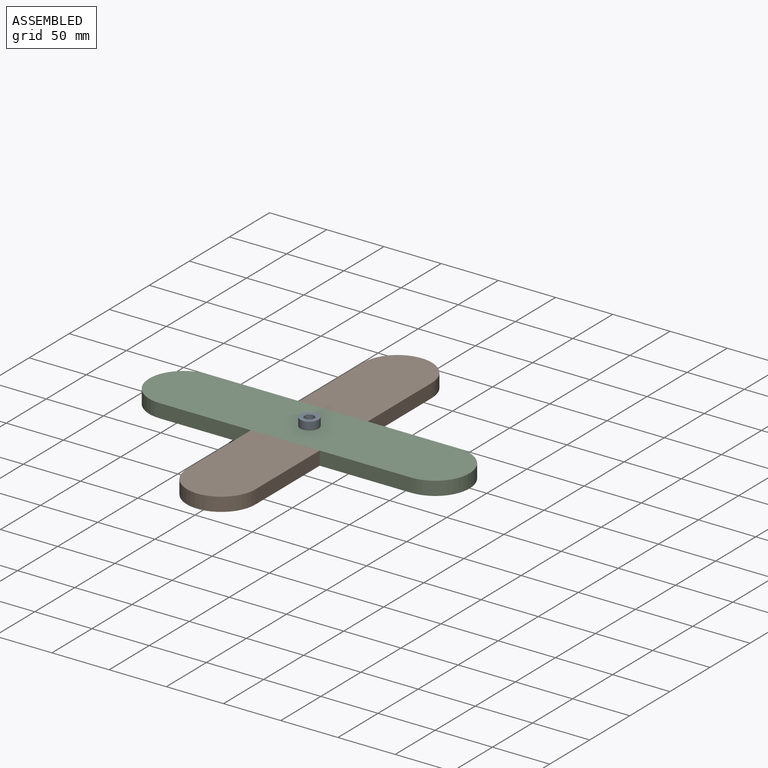
[diagram: assembled view]
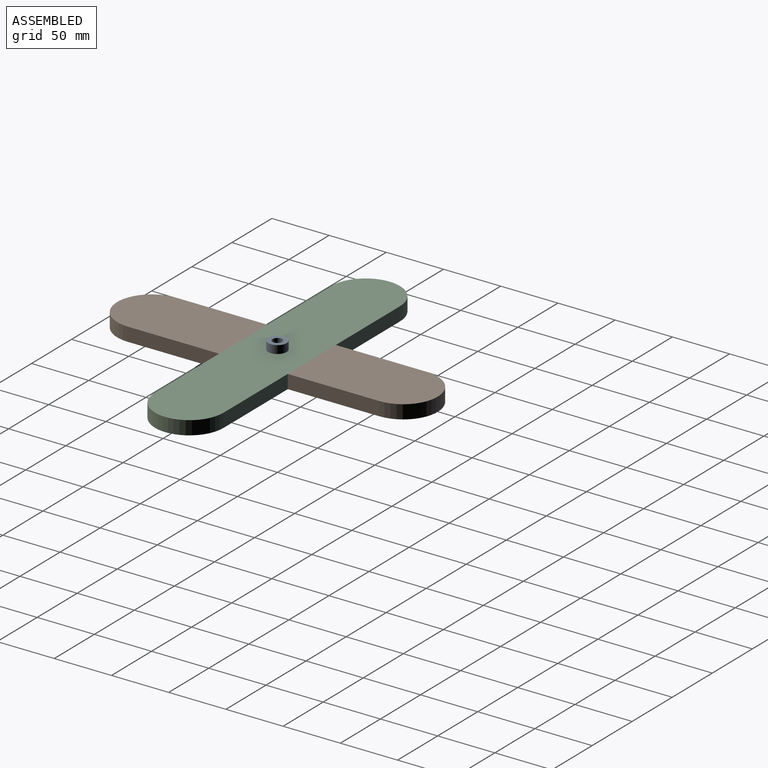
[diagram: assembled view, second angle]
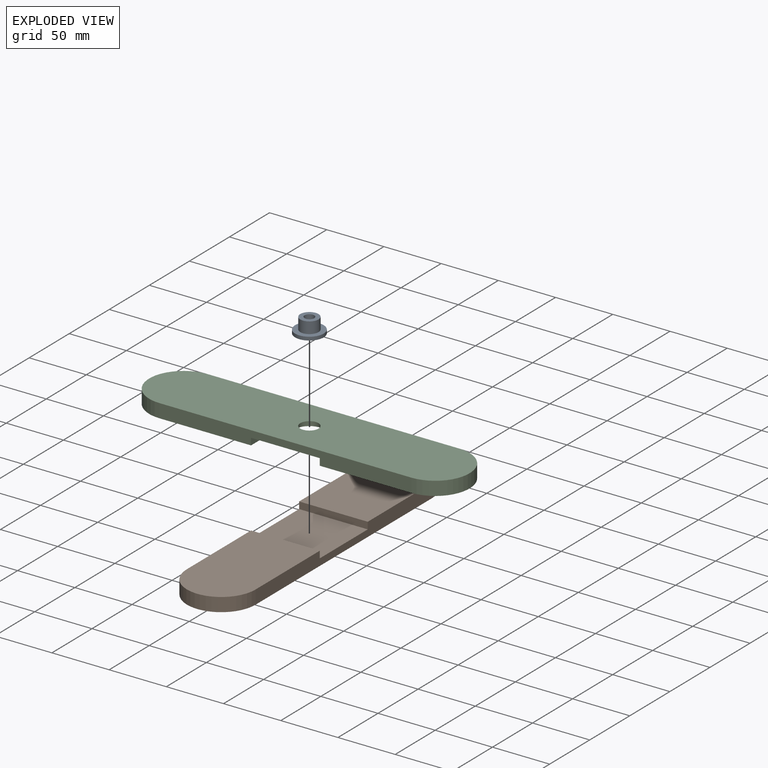
[diagram: exploded view]
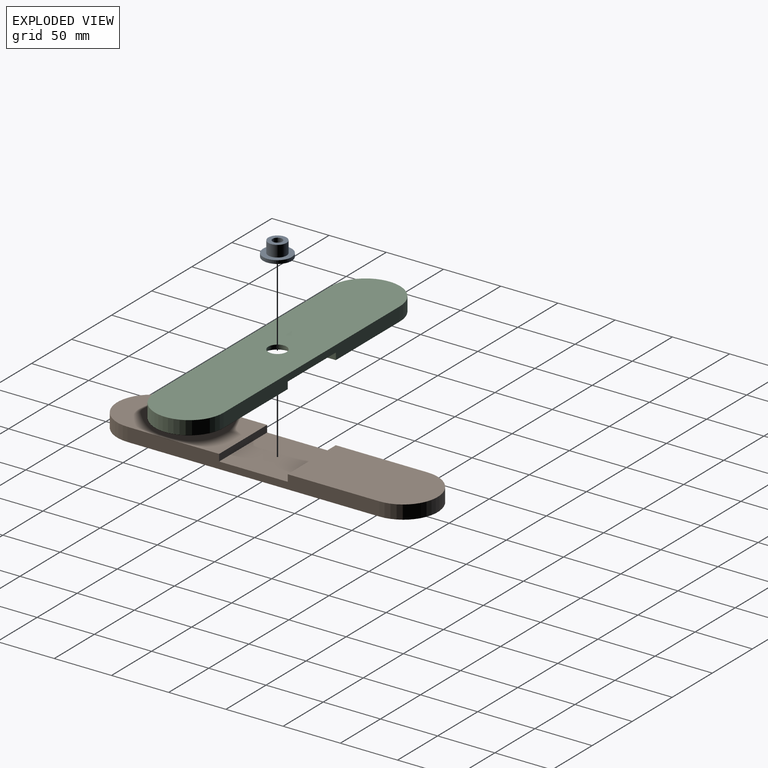
[diagram: exploded view, second angle]
ASSEMBLY  parts=3 mates=2
PART A: 6 faces, bbox 25x25x13 mm
  f0: cylinder r=12.5mm len=25mm, axis (0,0,-1), area 235.6mm2, adj f1,f2
  f1: plane 25x25mm, normal (0,0,1), area 289.8mm2, adj f0,f3
  f2: plane 25x25mm, normal (0,0,-1), area 434.1mm2, adj f0,f5
  f3: cylinder r=8mm len=16mm, axis (0,0,-1), area 502.7mm2, adj f1,f4
  f4: plane 16x16mm, normal (0,0,1), area 144.3mm2, adj f3,f5
  f5: cylinder r=4.25mm len=13mm, axis (0,0,1), area 347.1mm2, adj f2,f4
PART B: 10 faces, bbox 280x60x12 mm
  f0: plane 110x60mm, normal (0,0,1), area 6213.7mm2, adj f1,f3,f4,f7
  f1: plane 220x12mm, normal (0,1,0), area 2280mm2, adj f0,f2,f4,f5,f6,f7,f8,f9
  f2: cylinder r=30mm len=60mm, axis (0,0,1), area 1131mm2, adj f1,f3,f5,f6
  f3: plane 220x12mm, normal (0,-1,0), area 2280mm2, adj f0,f2,f4,f5,f6,f7,f8,f9
  f4: cylinder r=30mm len=60mm, axis (0,0,1), area 1131mm2, adj f0,f1,f3,f5
  f5: plane 280x60mm, normal (0,0,-1), area 16027.4mm2, adj f1,f2,f3,f4
  f6: plane 110x60mm, normal (0,0,1), area 6213.7mm2, adj f1,f2,f3,f8
  f7: plane 60x6mm, normal (-1,0,0), area 360mm2, adj f0,f1,f3,f9
  f8: plane 60x6mm, normal (1,0,0), area 360mm2, adj f1,f3,f6,f9
  f9: plane 60x60mm, normal (0,0,1), area 3600mm2, adj f1,f3,f7,f8
PART C: 13 faces, bbox 280x60x12 mm
  f0: plane 110x60mm, normal (0,0,-1), area 6213.7mm2, adj f1,f2,f3,f8
  f1: plane 220x12mm, normal (0,1,0), area 2280mm2, adj f0,f2,f4,f5,f6,f7,f8,f9
  f2: cylinder r=30mm len=60mm, axis (0,0,1), area 1131mm2, adj f0,f1,f3,f6
  f3: plane 220x12mm, normal (0,-1,0), area 2280mm2, adj f0,f2,f4,f5,f6,f7,f8,f9
  f4: cylinder r=30mm len=60mm, axis (0,0,1), area 1131mm2, adj f1,f3,f5,f6
  f5: plane 110x60mm, normal (0,0,-1), area 6213.7mm2, adj f1,f3,f4,f7
  f6: plane 280x60mm, normal (0,0,1), area 15826.4mm2, adj f1,f2,f3,f4,f12
  f7: plane 60x6mm, normal (-1,0,0), area 360mm2, adj f1,f3,f5,f9
  f8: plane 60x6mm, normal (1,0,0), area 360mm2, adj f0,f1,f3,f9
  f9: plane 60x60mm, normal (0,0,-1), area 3109.1mm2, adj f1,f3,f7,f8,f10
  f10: cylinder r=12.5mm len=25mm, axis (0,0,-1), area 235.6mm2, adj f9,f11
  f11: plane 25x25mm, normal (0,0,-1), area 289.8mm2, adj f10,f12
  f12: cylinder r=8mm len=16mm, axis (0,0,-1), area 150.8mm2, adj f6,f11
PLACE A t=(0,0,-6)mm
PLACE B rot(axis=(0,0,1),90deg) t=(0,0,0)mm
PLACE C at identity fixed
MATE cylindrical A.f3 <-> C.f12  axis (0,0,1) through (0,0,-3)mm
MATE planar B.f7 <-> C.f1  axis (0,-1,0) through (0,30,0)mm
